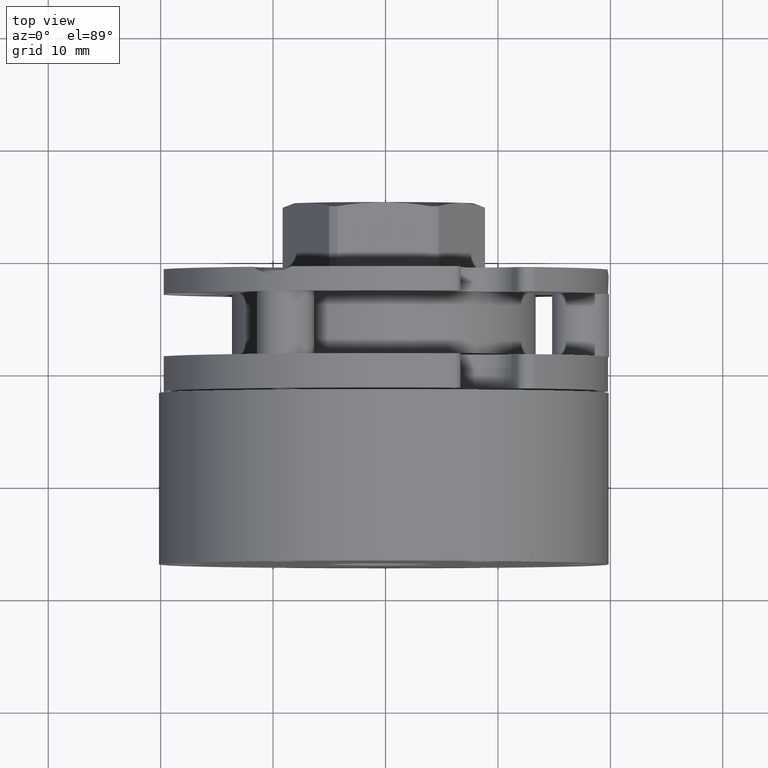
[diagram: clean part render]
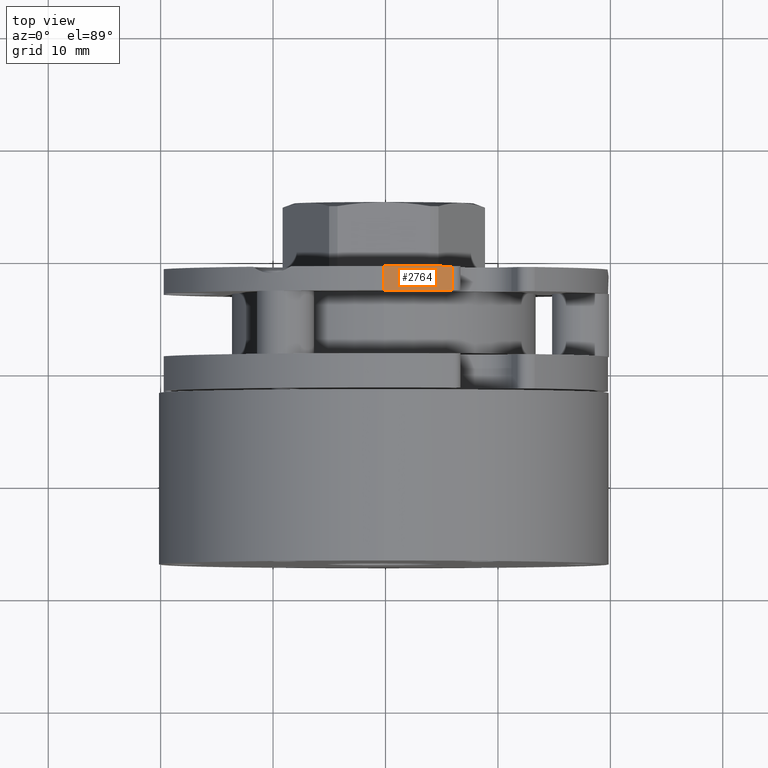
[diagram: same view with one face highlighted and labeled with its STEP entity id]
A machine part, top view. The second image highlights one B-rep face of the part: STEP entity #2764.
In plain terms, the highlighted cylindrical surface (partial cylindrical patch) has radius 20 mm, axis along (0, 1, 0).
Its self-contained STEP definition (entity closure, byte-faithful):
#130 = EDGE_CURVE ( 'NONE', #2877, #5366, #1529, .T. ) ;
#132 = CARTESIAN_POINT ( 'NONE',  ( -0.1489901573797476897, -60.93216099891347426, 0.2983377589557986709 ) ) ;
#184 = VERTEX_POINT ( 'NONE', #9220 ) ;
#808 = DIRECTION ( 'NONE',  ( 1.963197694344378727E-17, 1.000000000000000000, 6.123233995736912715E-17 ) ) ;
#954 = CARTESIAN_POINT ( 'NONE',  ( 5.980468995636535112, -63.08216099891336626, 19.33592506647742582 ) ) ;
#1529 = LINE ( 'NONE', #4186, #8959 ) ;
#1559 = DIRECTION ( 'NONE',  ( -1.963197694344378727E-17, -1.000000000000000000, -6.123233995736912715E-17 ) ) ;
#1938 = CARTESIAN_POINT ( 'NONE',  ( -0.1489901573797477174, -60.93216099891347426, 20.29833775895581027 ) ) ;
#2009 = LINE ( 'NONE', #954, #5172 ) ;
#2764 = ADVANCED_FACE ( 'NONE', ( #2785 ), #6358, .T. ) ;
#2785 = FACE_OUTER_BOUND ( 'NONE', #7316, .T. ) ;
#2877 = VERTEX_POINT ( 'NONE', #8069 ) ;
#3283 = CIRCLE ( 'NONE', #4666, 20.00000000000001066 ) ;
#3578 = AXIS2_PLACEMENT_3D ( 'NONE', #5127, #8829, #6556 ) ;
#4186 = CARTESIAN_POINT ( 'NONE',  ( -0.1489901573797477452, -63.08216099891336626, 20.29833775895581027 ) ) ;
#4342 = CARTESIAN_POINT ( 'NONE',  ( 5.980468995636538665, -63.08216099891342310, 19.33592506647742582 ) ) ;
#4666 = AXIS2_PLACEMENT_3D ( 'NONE', #132, #5845, #6673 ) ;
#5127 = CARTESIAN_POINT ( 'NONE',  ( -0.1489901573797477452, -63.08216099891336626, 0.2983377589557985599 ) ) ;
#5146 = CARTESIAN_POINT ( 'NONE',  ( -0.1489901573797477452, -63.08216099891336626, 0.2983377589557985599 ) ) ;
#5172 = VECTOR ( 'NONE', #1559, 1000.000000000000000 ) ;
#5366 = VERTEX_POINT ( 'NONE', #1938 ) ;
#5845 = DIRECTION ( 'NONE',  ( -1.963197694344378727E-17, -1.000000000000000000, -6.123233995736912715E-17 ) ) ;
#5934 = ORIENTED_EDGE ( 'NONE', *, *, #8607, .T. ) ;
#6128 = ORIENTED_EDGE ( 'NONE', *, *, #6359, .T. ) ;
#6271 = CIRCLE ( 'NONE', #3578, 20.00000000000001066 ) ;
#6358 = CYLINDRICAL_SURFACE ( 'NONE', #7598, 20.00000000000001066 ) ;
#6359 = EDGE_CURVE ( 'NONE', #2877, #8404, #6271, .T. ) ;
#6420 = DIRECTION ( 'NONE',  ( 1.963197694344378727E-17, 1.000000000000000000, 6.123233995736912715E-17 ) ) ;
#6554 = ORIENTED_EDGE ( 'NONE', *, *, #130, .F. ) ;
#6556 = DIRECTION ( 'NONE',  ( 0.0000000000000000000, 0.0000000000000000000, 1.000000000000000000 ) ) ;
#6673 = DIRECTION ( 'NONE',  ( -4.441163149043745171E-15, 0.0000000000000000000, 1.000000000000000000 ) ) ;
#7303 = DIRECTION ( 'NONE',  ( 0.0000000000000000000, 0.0000000000000000000, 1.000000000000000000 ) ) ;
#7316 = EDGE_LOOP ( 'NONE', ( #6554, #6128, #9213, #5934 ) ) ;
#7598 = AXIS2_PLACEMENT_3D ( 'NONE', #5146, #808, #7303 ) ;
#8069 = CARTESIAN_POINT ( 'NONE',  ( -0.1489901573797477174, -63.08216099891336626, 20.29833775895581027 ) ) ;
#8404 = VERTEX_POINT ( 'NONE', #4342 ) ;
#8607 = EDGE_CURVE ( 'NONE', #184, #5366, #3283, .T. ) ;
#8829 = DIRECTION ( 'NONE',  ( 1.963197694344378727E-17, 1.000000000000000000, 6.123233995736912715E-17 ) ) ;
#8959 = VECTOR ( 'NONE', #6420, 1000.000000000000000 ) ;
#9185 = EDGE_CURVE ( 'NONE', #184, #8404, #2009, .T. ) ;
#9213 = ORIENTED_EDGE ( 'NONE', *, *, #9185, .F. ) ;
#9220 = CARTESIAN_POINT ( 'NONE',  ( 5.980468995636538665, -60.93216099891342452, 19.33592506647742582 ) ) ;